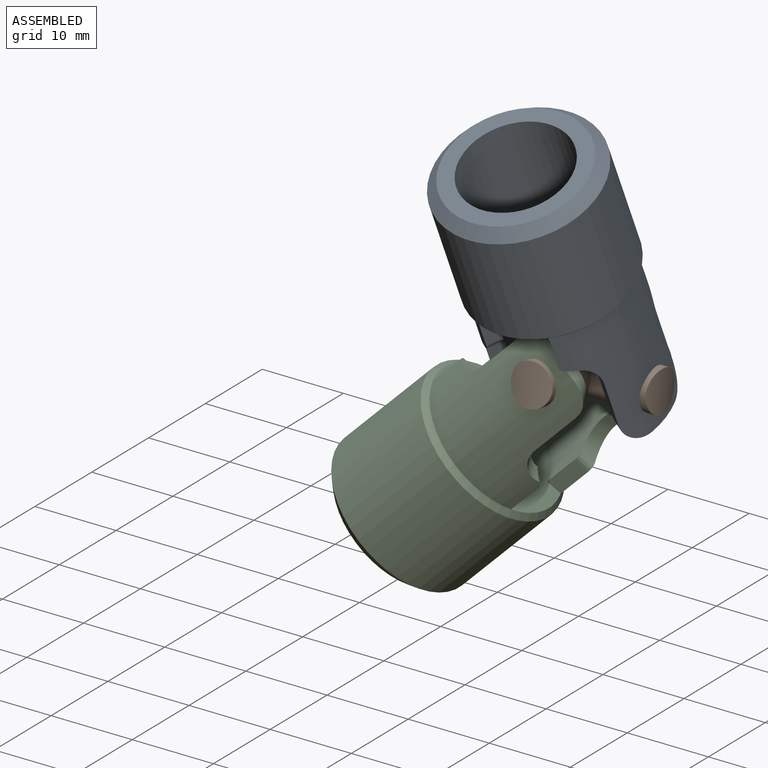
[diagram: assembled view]
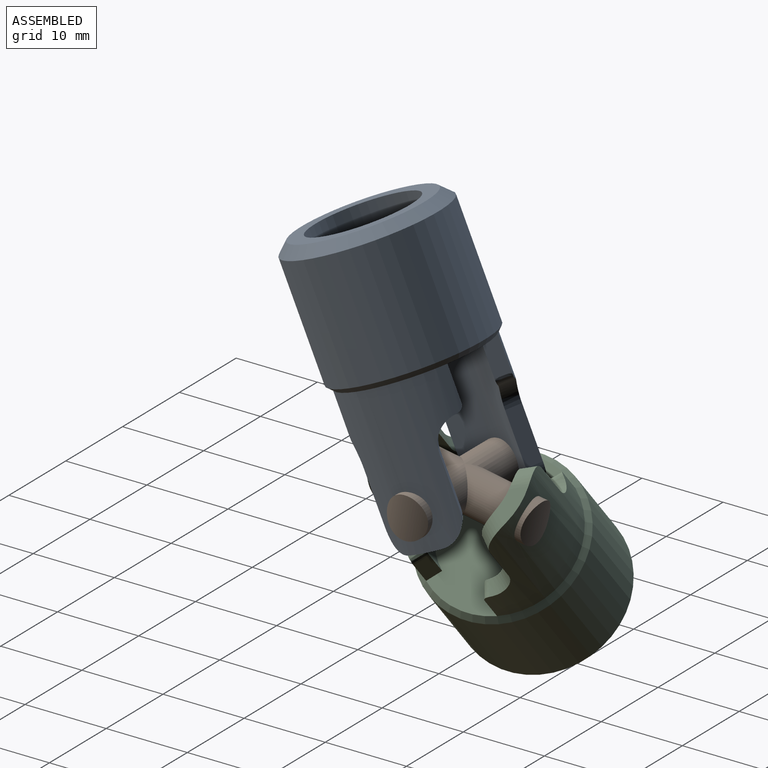
[diagram: assembled view, second angle]
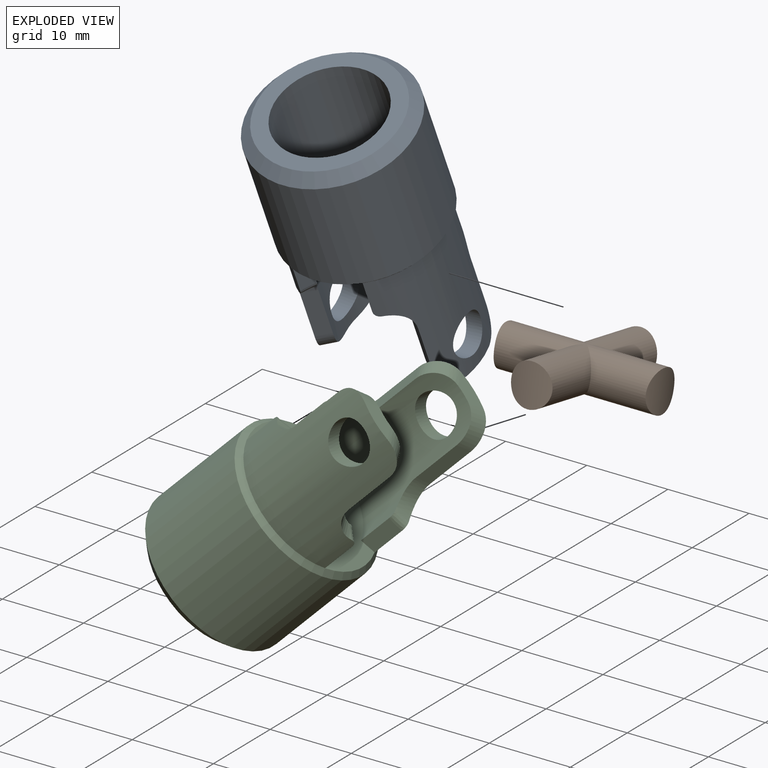
[diagram: exploded view]
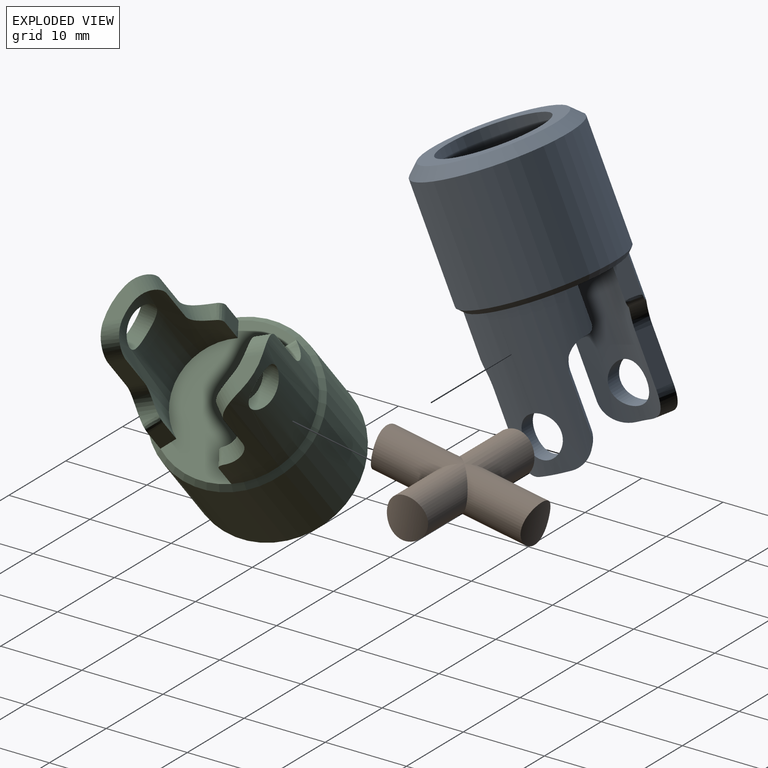
[diagram: exploded view, second angle]
ASSEMBLY  parts=3 mates=2
PART A: 35 faces, bbox 19.1x28.9x37.2 mm
  f0: cylinder r=6.99mm len=21.17mm, axis (0,0.41,-0.91), area 161.6mm2, adj f4,f9,f10,f11,f12,f13,f14,f15
  f1: cylinder r=8.89mm len=22.51mm, axis (0,0.41,-0.91), area 211.4mm2, adj f9,f10,f11,f12,f13,f14,f15,f16
  f2: cylinder r=8.89mm len=22.51mm, axis (0,0.41,-0.91), area 211.4mm2, adj f20,f21,f22,f23,f24,f25,f26,f27
  f3: cylinder r=6.99mm len=21.17mm, axis (0,0.41,-0.91), area 161.6mm2, adj f4,f20,f21,f22,f23,f24,f25,f26
  f4: plane 16.24x13.97mm, normal (0,0.41,-0.91), area 184.9mm2, adj f0,f3,f9,f10,f20,f21,f31
  f5: cylinder r=6.35mm len=16.77mm, axis (0,0.41,-0.91), area 506.7mm2, adj f7,f8
  f6: cylinder r=9.53mm len=23.09mm, axis (0,0.41,-0.91), area 836.1mm2, adj f31,f34
  f7: plane 16.51x15.08mm, normal (0,-0.41,0.91), area 87.4mm2, adj f5,f34
  f8: plane 12.7x11.6mm, normal (0,-0.41,0.91), area 126.7mm2, adj f5
  f9: plane 4.67x3.24mm, normal (0.87,0.46,0.2), area 8.2mm2, adj f0,f1,f4,f18
  f10: plane 4.56x3.29mm, normal (0.87,-0.46,-0.2), area 8.2mm2, adj f0,f1,f4,f19
  f11: plane 6.24x3.59mm, normal (0.57,0.75,0.33), area 12.1mm2, adj f0,f1,f15,f16
  f12: plane 3.95x1.97mm, normal (0,0.41,-0.91), area 6mm2, adj f0,f1,f16,f17
  f13: plane 6.24x3.59mm, normal (0.57,-0.75,-0.33), area 12.1mm2, adj f0,f1,f14,f17
  f14: cylinder r=3.17mm len=4.77mm, axis (-0.82,-0.52,-0.23), area 8.5mm2, adj f0,f1,f13,f19
  f15: cylinder r=3.17mm len=4.45mm, axis (0.82,-0.52,-0.23), area 8.5mm2, adj f0,f1,f11,f18
  f16: cylinder r=3.17mm len=4.58mm, axis (-0.82,0.52,0.23), area 9.9mm2, adj f0,f1,f11,f12
  f17: cylinder r=3.17mm len=5.07mm, axis (0.82,0.52,0.23), area 9.9mm2, adj f0,f1,f12,f13
  f18: bspline ~1.71x1.68mm, area 2.2mm2, adj f0,f1,f9,f15
  f19: bspline ~2.2x1.71mm, area 2.2mm2, adj f0,f1,f10,f14
  f20: plane 4.67x3.24mm, normal (-0.87,0.46,0.2), area 8.2mm2, adj f2,f3,f4,f29
  f21: plane 4.56x3.29mm, normal (-0.87,-0.46,-0.2), area 8.2mm2, adj f2,f3,f4,f30
  f22: plane 6.24x3.59mm, normal (-0.57,0.75,0.33), area 12.1mm2, adj f2,f3,f26,f27
  f23: plane 3.95x1.97mm, normal (0,0.41,-0.91), area 6mm2, adj f2,f3,f27,f28
  f24: plane 6.24x3.59mm, normal (-0.57,-0.75,-0.33), area 12.1mm2, adj f2,f3,f25,f28
  f25: cylinder r=3.17mm len=4.77mm, axis (-0.82,0.52,0.23), area 8.5mm2, adj f2,f3,f24,f30
  f26: cylinder r=3.17mm len=4.45mm, axis (0.82,0.52,0.23), area 8.5mm2, adj f2,f3,f22,f29
  f27: cylinder r=3.17mm len=4.58mm, axis (-0.82,-0.52,-0.23), area 9.9mm2, adj f2,f3,f22,f23
  f28: cylinder r=3.17mm len=5.07mm, axis (0.82,-0.52,-0.23), area 9.9mm2, adj f2,f3,f23,f24
  f29: bspline ~1.71x1.68mm, area 2.2mm2, adj f2,f3,f20,f26
  f30: bspline ~2.2x1.71mm, area 2.2mm2, adj f2,f3,f21,f25
  f31: cone r=8.89mm half-angle=45deg, axis (0,-0.41,0.91), area 52mm2, adj f1,f2,f4,f6
  f32: cylinder r=2.54mm len=5.08mm, axis (-1,0,0), area 30.4mm2, adj f2,f3
  f33: cylinder r=2.54mm len=5.08mm, axis (-1,0,0), area 30.4mm2, adj f0,f1
  f34: cone r=9.53mm half-angle=45deg, axis (0,0.41,-0.91), area 100.3mm2, adj f6,f7
PART B: 8 faces, bbox 19.4x19.8x12.6 mm
  f0: cylinder r=2.54mm len=10.94mm, axis (0,-0.91,-0.41), area 126.3mm2, adj f1,f3,f6
  f1: cylinder r=8.89mm len=5.08mm, axis (0,-0.41,0.91), area 20.5mm2, adj f0
  f2: cylinder r=8.89mm len=6.71mm, axis (0,-0.41,0.91), area 20.5mm2, adj f3
  f3: cylinder r=2.54mm len=9.72mm, axis (1,0,0), area 126.3mm2, adj f0,f2,f5
  f4: cylinder r=8.89mm len=5.08mm, axis (0,-0.41,0.91), area 20.5mm2, adj f5
  f5: cylinder r=2.54mm len=10.94mm, axis (0,-0.91,-0.41), area 126.3mm2, adj f3,f4,f6
  f6: cylinder r=2.54mm len=9.72mm, axis (1,0,0), area 126.3mm2, adj f0,f5,f7
  f7: cylinder r=8.89mm len=6.71mm, axis (0,-0.41,0.91), area 20.5mm2, adj f6
PART C: 35 faces, bbox 19.1x30.2x37.8 mm
  f0: cylinder r=6.99mm len=17.66mm, axis (0,-0.41,0.91), area 161.6mm2, adj f4,f9,f10,f11,f12,f13,f14,f15
  f1: cylinder r=8.89mm len=18.05mm, axis (0,-0.41,0.91), area 211.4mm2, adj f9,f10,f11,f12,f13,f14,f15,f16
  f2: cylinder r=8.89mm len=18.05mm, axis (0,-0.41,0.91), area 211.4mm2, adj f20,f21,f22,f23,f24,f25,f26,f27
  f3: cylinder r=6.99mm len=17.66mm, axis (0,-0.41,0.91), area 161.6mm2, adj f4,f20,f21,f22,f23,f24,f25,f26
  f4: plane 17.78x12.76mm, normal (0,-0.41,0.91), area 184.9mm2, adj f0,f3,f9,f10,f20,f21,f31
  f5: cylinder r=6.35mm len=16.77mm, axis (0,-0.41,0.91), area 506.7mm2, adj f7,f8
  f6: cylinder r=9.53mm len=23.09mm, axis (0,-0.41,0.91), area 836.1mm2, adj f31,f34
  f7: plane 16.51x15.08mm, normal (0,0.41,-0.91), area 87.4mm2, adj f5,f34
  f8: plane 12.7x11.6mm, normal (0,0.41,-0.91), area 126.7mm2, adj f5
  f9: plane 4.38x2.6mm, normal (-0.5,0.79,0.35), area 8.2mm2, adj f0,f1,f4,f18
  f10: plane 4.38x2.6mm, normal (0.5,0.79,0.35), area 8.2mm2, adj f0,f1,f4,f19
  f11: plane 6.44x4.01mm, normal (-0.82,0.52,0.23), area 12.1mm2, adj f0,f1,f15,f16
  f12: plane 4.32x1.8mm, normal (0,-0.41,0.91), area 6mm2, adj f0,f1,f16,f17
  f13: plane 6.44x4.01mm, normal (0.82,0.52,0.23), area 12.1mm2, adj f0,f1,f14,f17
  f14: cylinder r=3.17mm len=4.61mm, axis (0.57,-0.75,-0.33), area 8.5mm2, adj f0,f1,f13,f19
  f15: cylinder r=3.17mm len=4.61mm, axis (0.57,0.75,0.33), area 8.5mm2, adj f0,f1,f11,f18
  f16: cylinder r=3.17mm len=4.95mm, axis (-0.57,-0.75,-0.33), area 9.9mm2, adj f0,f1,f11,f12
  f17: cylinder r=3.17mm len=4.95mm, axis (-0.57,0.75,0.33), area 9.9mm2, adj f0,f1,f12,f13
  f18: bspline ~1.99x1.84mm, area 2.2mm2, adj f0,f1,f9,f15
  f19: bspline ~1.99x1.84mm, area 2.2mm2, adj f0,f1,f10,f14
  f20: plane 4.28x2.65mm, normal (-0.5,-0.79,-0.35), area 8.2mm2, adj f2,f3,f4,f29
  f21: plane 4.28x2.65mm, normal (0.5,-0.79,-0.35), area 8.2mm2, adj f2,f3,f4,f30
  f22: plane 6.44x4.01mm, normal (-0.82,-0.52,-0.23), area 12.1mm2, adj f2,f3,f26,f27
  f23: plane 4.32x1.8mm, normal (0,-0.41,0.91), area 6mm2, adj f2,f3,f27,f28
  f24: plane 6.44x4.01mm, normal (0.82,-0.52,-0.23), area 12.1mm2, adj f2,f3,f25,f28
  f25: cylinder r=3.17mm len=4.38mm, axis (-0.57,-0.75,-0.33), area 8.5mm2, adj f2,f3,f24,f30
  f26: cylinder r=3.17mm len=4.38mm, axis (-0.57,0.75,0.33), area 8.5mm2, adj f2,f3,f22,f29
  f27: cylinder r=3.17mm len=4.53mm, axis (0.57,-0.75,-0.33), area 9.9mm2, adj f2,f3,f22,f23
  f28: cylinder r=3.17mm len=4.53mm, axis (0.57,0.75,0.33), area 9.9mm2, adj f2,f3,f23,f24
  f29: bspline ~1.99x1.33mm, area 2.2mm2, adj f2,f3,f20,f26
  f30: bspline ~1.99x1.33mm, area 2.2mm2, adj f2,f3,f21,f25
  f31: cone r=8.89mm half-angle=45deg, axis (0,0.41,-0.91), area 52mm2, adj f1,f2,f4,f6
  f32: cylinder r=2.54mm len=5.42mm, axis (0,-0.91,-0.41), area 30.4mm2, adj f2,f3
  f33: cylinder r=2.54mm len=5.42mm, axis (0,-0.91,-0.41), area 30.4mm2, adj f0,f1
  f34: cone r=9.53mm half-angle=45deg, axis (0,-0.41,0.91), area 100.3mm2, adj f6,f7
PLACE A t=(46.93,27.74,-19.68)mm fixed
PLACE B rot(axis=(-1,0,0),34.3deg) t=(46.93,67.02,525.92)mm
PLACE C rot(axis=(-0.59,0.8,0.1),55.6deg) t=(154.29,50.98,437.7)mm
MATE revolute B.f3 <-> A.f32  axis (1,0,0) through (-9.4,930.11,189.57)mm
MATE revolute B.f0 <-> C.f32  axis (0,0.98,-0.18) through (-9.4,930.11,189.57)mm
